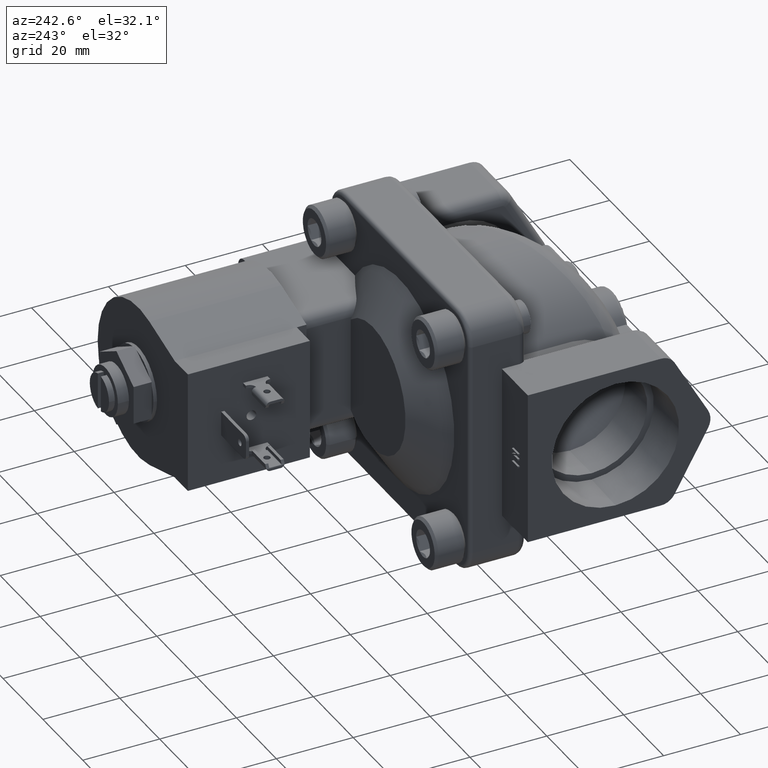
[diagram: clean part render]
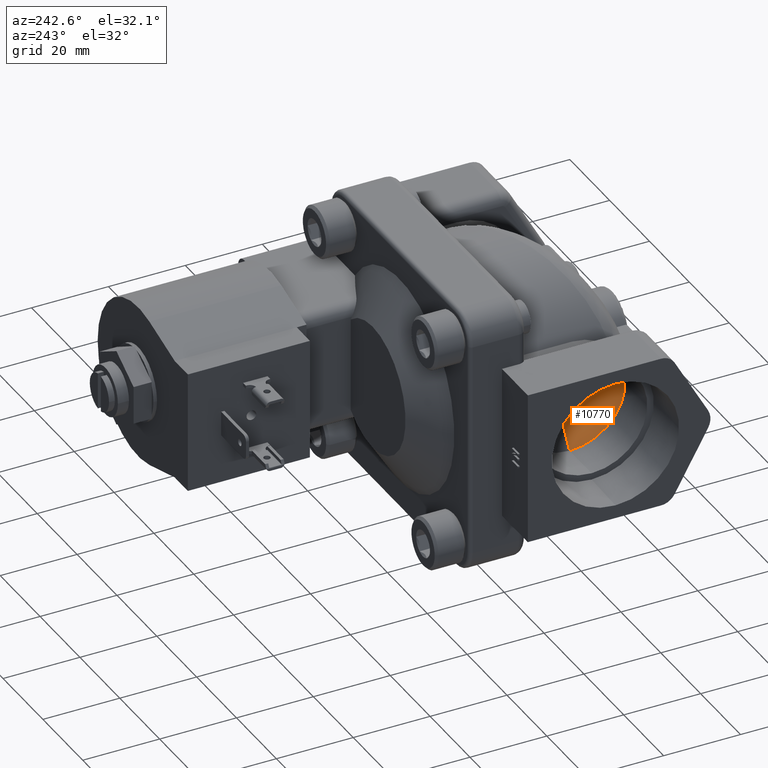
[diagram: same view with one face highlighted and labeled with its STEP entity id]
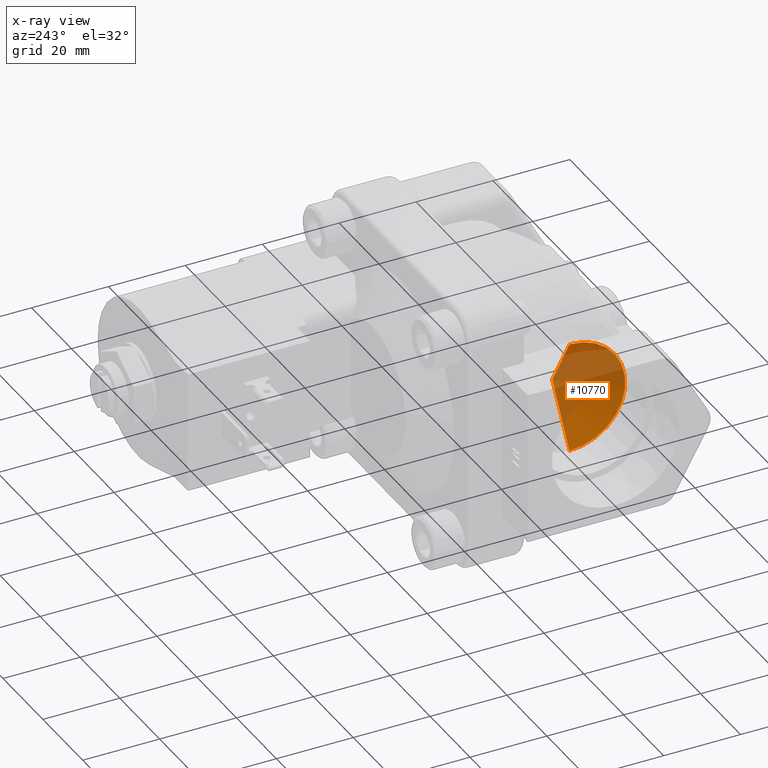
[diagram: x-ray of the same camera — body ghosted, the highlighted face saturated]
A machine part, auxiliary view. The second image highlights one B-rep face of the part: STEP entity #10770.
The next image is the same camera in x-ray: the body ghosted, the highlighted face saturated — about 55% of this face is hidden behind the body in this view.
In plain terms, the highlighted conical surface has half-angle 59 deg.
Its self-contained STEP definition (entity closure, byte-faithful):
#653 = CARTESIAN_POINT ( 'NONE',  ( -24.94999999999999929, -24.79999999999999716, -14.49070000000000036 ) ) ;
#763 = DIRECTION ( 'NONE',  ( -0.5150380749100541555, 0.000000000000000000, 0.8571673007021122226 ) ) ;
#826 = ORIENTED_EDGE ( 'NONE', *, *, #13343, .T. ) ;
#1374 = VECTOR ( 'NONE', #763, 1000.000000000000114 ) ;
#1586 = CARTESIAN_POINT ( 'NONE',  ( -24.94999999999999929, -24.80000000000000071, 0.000000000000000000 ) ) ;
#1769 = VERTEX_POINT ( 'NONE', #653 ) ;
#1830 = CARTESIAN_POINT ( 'NONE',  ( -24.94999999999999929, -24.80000000000000071, 0.000000000000000000 ) ) ;
#1989 = LINE ( 'NONE', #5417, #1374 ) ;
#3867 = CONICAL_SURFACE ( 'NONE', #5510, 14.49070000000000036, 1.029744258676654534 ) ;
#4095 = CARTESIAN_POINT ( 'NONE',  ( -24.94999999999999929, -24.79999999999999716, -14.49070000000000036 ) ) ;
#5212 = FACE_OUTER_BOUND ( 'NONE', #9572, .T. ) ;
#5395 = CARTESIAN_POINT ( 'NONE',  ( -24.94999999999999929, -24.80000000000000071, 14.49070000000000036 ) ) ;
#5417 = CARTESIAN_POINT ( 'NONE',  ( -24.94999999999999929, -24.80000000000000071, 14.49070000000000036 ) ) ;
#5456 = DIRECTION ( 'NONE',  ( -1.000000000000000000, -0.000000000000000000, -0.000000000000000000 ) ) ;
#5510 = AXIS2_PLACEMENT_3D ( 'NONE', #1586, #6029, #10459 ) ;
#5663 = EDGE_CURVE ( 'NONE', #1769, #7012, #12143, .T. ) ;
#6029 = DIRECTION ( 'NONE',  ( -1.000000000000000000, -0.000000000000000000, -0.000000000000000000 ) ) ;
#6498 = CARTESIAN_POINT ( 'NONE',  ( -16.24310902785733290, -24.80000000000000071, 0.000000000000000000 ) ) ;
#7012 = VERTEX_POINT ( 'NONE', #5395 ) ;
#7648 = ORIENTED_EDGE ( 'NONE', *, *, #13302, .F. ) ;
#8632 = VERTEX_POINT ( 'NONE', #6498 ) ;
#8870 = ORIENTED_EDGE ( 'NONE', *, *, #5663, .T. ) ;
#9572 = EDGE_LOOP ( 'NONE', ( #7648, #826, #8870 ) ) ;
#9888 = DIRECTION ( 'NONE',  ( 0.000000000000000000, 0.000000000000000000, 1.000000000000000000 ) ) ;
#10459 = DIRECTION ( 'NONE',  ( 0.000000000000000000, 0.000000000000000000, 1.000000000000000000 ) ) ;
#10770 = ADVANCED_FACE ( 'NONE', ( #5212 ), #3867, .F. ) ;
#10783 = DIRECTION ( 'NONE',  ( -0.5150380749100541555, 1.049727191138618696E-16, -0.8571673007021122226 ) ) ;
#11356 = VECTOR ( 'NONE', #10783, 1000.000000000000114 ) ;
#12143 = CIRCLE ( 'NONE', #13085, 14.49070000000000036 ) ;
#12166 = LINE ( 'NONE', #4095, #11356 ) ;
#13085 = AXIS2_PLACEMENT_3D ( 'NONE', #1830, #5456, #9888 ) ;
#13302 = EDGE_CURVE ( 'NONE', #8632, #7012, #1989, .T. ) ;
#13343 = EDGE_CURVE ( 'NONE', #8632, #1769, #12166, .T. ) ;